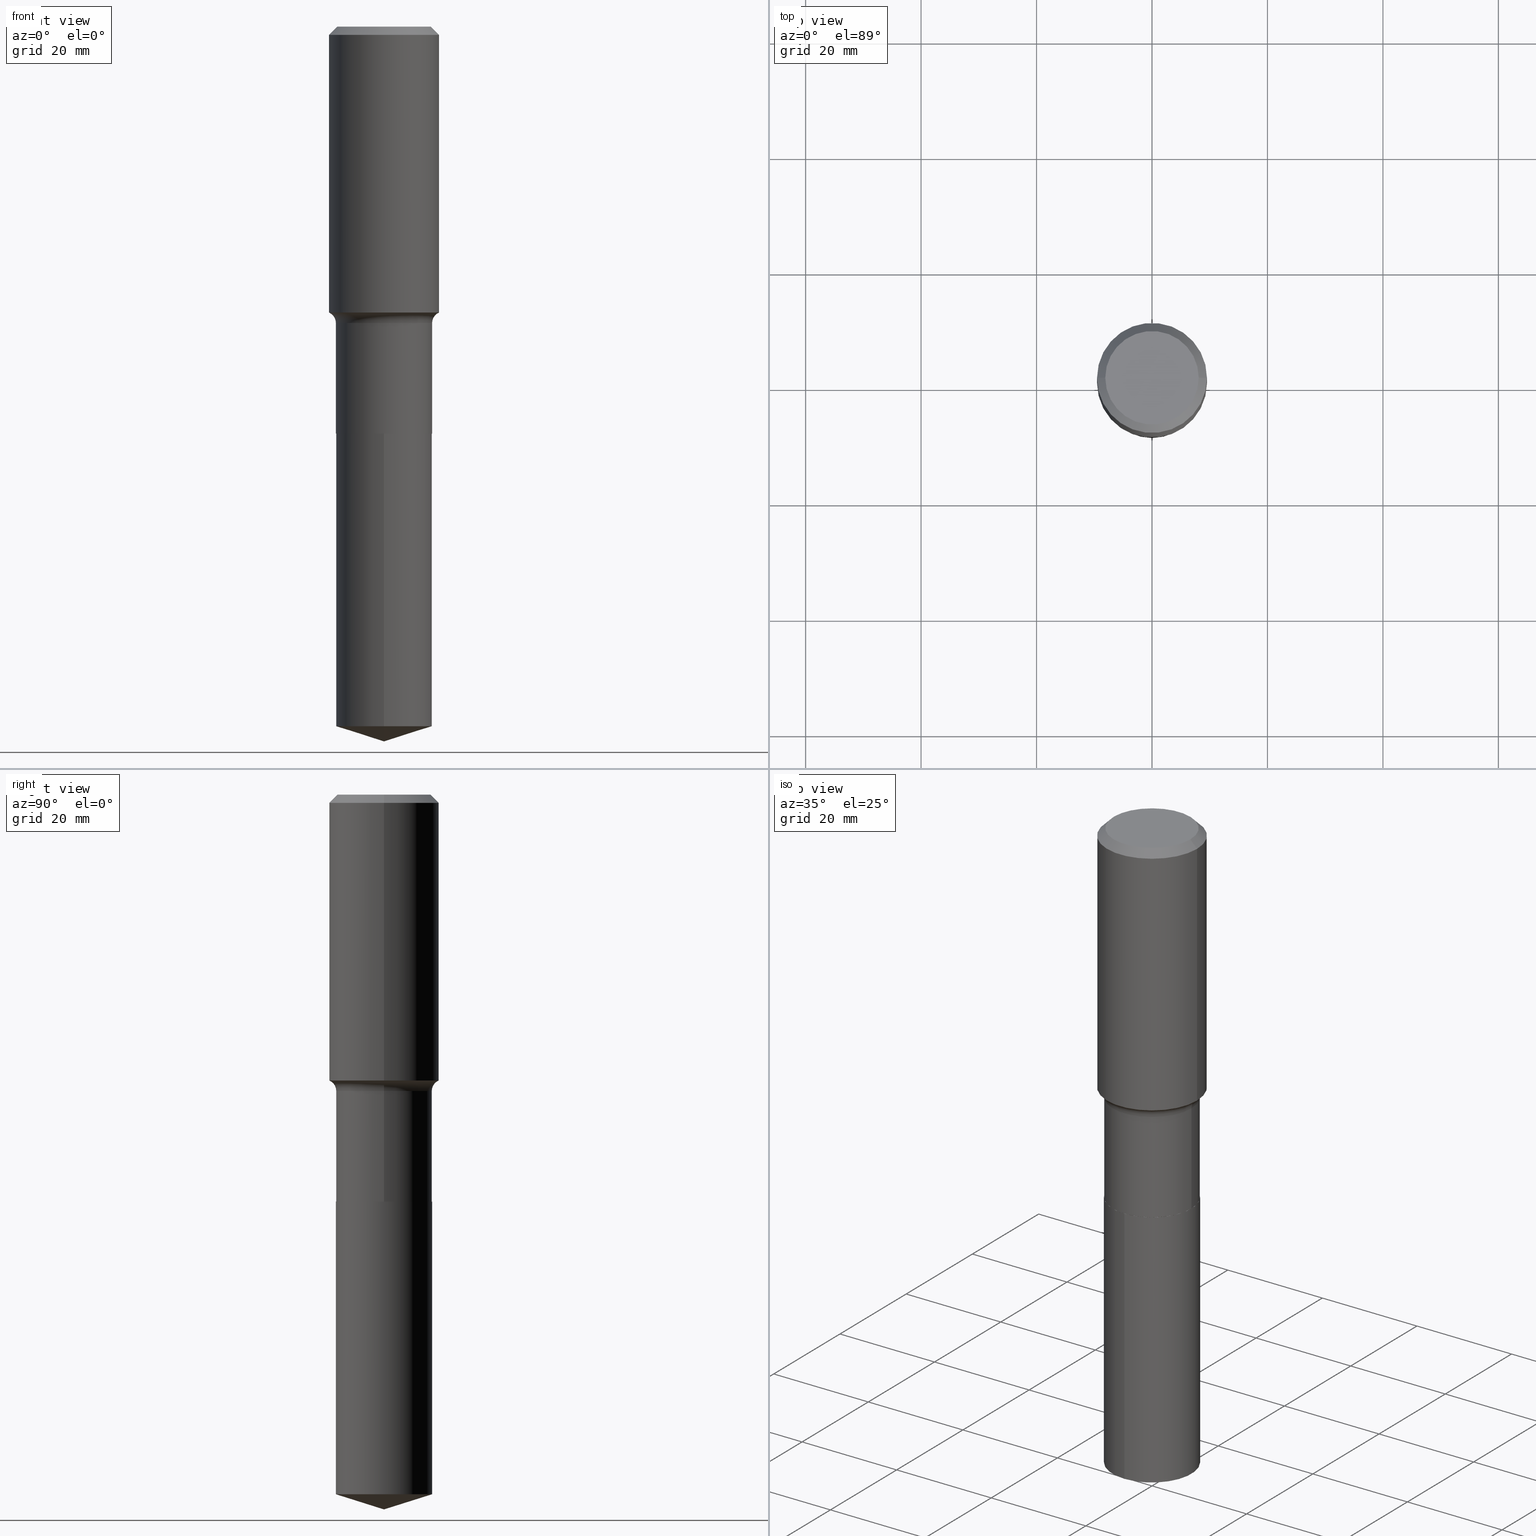
[diagram: canonical four-view strip — front | top / right | iso, engineering-drawing reading convention]
A machine part, canonical four-view strip (front | top / right | iso — engineering-drawing reading convention). The complete STEP part file that produces these views, byte-faithful:
ISO-10303-21;
HEADER;
FILE_DESCRIPTION (( 'STEP AP203' ),
    '1' );
FILE_NAME ('51369.STEP',
    '2024-04-19T12:53:29',
    ( '' ),
    ( '' ),
    'SwSTEP 2.0',
    'SolidWorks 2023',
    '' );
FILE_SCHEMA (( 'CONFIG_CONTROL_DESIGN' ));
ENDSEC;

DATA;
#1 = CALENDAR_DATE ( 2024, 19, 4 ) ;
#2 = DIRECTION ( 'NONE',  ( -6.982962677686266711E-15, -1.000000000000000000, 3.491481338843145583E-15 ) ) ;
#3 = CARTESIAN_POINT ( 'NONE',  ( -0.3280999999999998917, 2.331290716028887941E-15, -1.613902603112634153E-29 ) ) ;
#4 = AXIS2_PLACEMENT_3D ( 'NONE', #261, #329, #409 ) ;
#5 = ORIENTED_EDGE ( 'NONE', *, *, #203, .F. ) ;
#6 = CC_DESIGN_PERSON_AND_ORGANIZATION_ASSIGNMENT ( #95, #350, ( #218 ) ) ;
#7 = FACE_OUTER_BOUND ( 'NONE', #154, .T. ) ;
#8 = DIRECTION ( 'NONE',  ( -6.982962677686265133E-15, -1.000000000000000000, 3.330506545156066257E-15 ) ) ;
#9 = CARTESIAN_POINT ( 'NONE',  ( 0.3750000000000000555, -2.815006829442278240E-15, -0.05625000000000031364 ) ) ;
#10 = EDGE_CURVE ( 'NONE', #397, #120, #355, .T. ) ;
#11 = CALENDAR_DATE ( 2024, 19, 4 ) ;
#12 = MECHANICAL_CONTEXT ( 'NONE', #280, 'mechanical' ) ;
#13 = AXIS2_PLACEMENT_3D ( 'NONE', #94, #243, #209 ) ;
#14 = EDGE_CURVE ( 'NONE', #291, #321, #432, .T. ) ;
#15 = DIRECTION ( 'NONE',  ( 2.446539038429148282E-29, -3.489948705355884023E-15, -1.000000000000000000 ) ) ;
#16 = APPROVAL_DATE_TIME ( #353, #45 ) ;
#17 = EDGE_CURVE ( 'NONE', #291, #328, #426, .T. ) ;
#18 = AXIS2_PLACEMENT_3D ( 'NONE', #128, #276, #134 ) ;
#19 = DESIGN_CONTEXT ( 'detailed design', #265, 'design' ) ;
#20 = ORIENTED_EDGE ( 'NONE', *, *, #430, .T. ) ;
#21 = FACE_OUTER_BOUND ( 'NONE', #260, .T. ) ;
#22 = EDGE_LOOP ( 'NONE', ( #130, #20, #108, #420 ) ) ;
#23 = CARTESIAN_POINT ( 'NONE',  ( -2.291110054548795878E-15, -0.3281000000000096617, -2.776199999999998447 ) ) ;
#24 = VECTOR ( 'NONE', #461, 39.37007874015748854 ) ;
#25 = ORIENTED_EDGE ( 'NONE', *, *, #359, .F. ) ;
#26 = CARTESIAN_POINT ( 'NONE',  ( -0.3280999999999998917, -6.043550997387220874E-15, -2.775699999999999612 ) ) ;
#27 = AXIS2_PLACEMENT_3D ( 'NONE', #117, #322, #362 ) ;
#28 = EDGE_LOOP ( 'NONE', ( #61, #65, #458, #211 ) ) ;
#29 = DIRECTION ( 'NONE',  ( 2.445468806185136597E-29, -3.491481338843145583E-15, -1.000000000000000000 ) ) ;
#30 = EDGE_CURVE ( 'NONE', #377, #274, #240, .T. ) ;
#31 = CARTESIAN_POINT ( 'NONE',  ( 2.331290716029005086E-15, 0.3280999999999902883, -2.776200000000000667 ) ) ;
#32 = DATE_AND_TIME ( #367, #140 ) ;
#33 = VECTOR ( 'NONE', #166, 39.37007874015748143 ) ;
#34 = CARTESIAN_POINT ( 'NONE',  ( 4.943759738583870671E-29, -7.058378674605300908E-15, -2.021599999999999397 ) ) ;
#35 = ORIENTED_EDGE ( 'NONE', *, *, #376, .T. ) ;
#36 = CARTESIAN_POINT ( 'NONE',  ( 4.943759738583870671E-29, -7.058378674605300908E-15, -2.021599999999999397 ) ) ;
#37 = CARTESIAN_POINT ( 'NONE',  ( 1.375576203479146973E-30, -1.963958253099280262E-16, -0.05625000000000031364 ) ) ;
#38 = EDGE_LOOP ( 'NONE', ( #74, #302, #133 ) ) ;
#39 = AXIS2_PLACEMENT_3D ( 'NONE', #36, #239, #309 ) ;
#40 = DIRECTION ( 'NONE',  ( -6.982962677686265922E-15, -1.000000000000000000, 3.500519750498709954E-15 ) ) ;
#41 = ORIENTED_EDGE ( 'NONE', *, *, #347, .F. ) ;
#42 = CARTESIAN_POINT ( 'NONE',  ( -0.3750000000000002220, -4.144091675948292406E-15, -1.950068258793734799 ) ) ;
#43 = CIRCLE ( 'NONE', #438, 0.3276000000000000578 ) ;
#44 = DATE_AND_TIME ( #1, #316 ) ;
#45 = APPROVAL ( #138, 'UNSPECIFIED' ) ;
#46 = DIRECTION ( 'NONE',  ( 1.000000000000000000, -6.982962677686269077E-15, 0.000000000000000000 ) ) ;
#47 = EDGE_LOOP ( 'NONE', ( #173, #5 ) ) ;
#48 = LOCAL_TIME ( 8, 53, 29.00000000000000000, #98 ) ;
#49 = DIRECTION ( 'NONE',  ( -2.446539038429148563E-29, 3.489948705355884023E-15, 1.000000000000000000 ) ) ;
#50 = ORIENTED_EDGE ( 'NONE', *, *, #403, .F. ) ;
#51 = DATE_TIME_ROLE ( 'creation_date' ) ;
#52 = DIRECTION ( 'NONE',  ( -6.982962677686265133E-15, -1.000000000000000000, 3.330506545156066257E-15 ) ) ;
#53 = EDGE_CURVE ( 'NONE', #357, #120, #295, .T. ) ;
#54 = VECTOR ( 'NONE', #235, 39.37007874015748143 ) ;
#55 = EDGE_CURVE ( 'NONE', #291, #436, #122, .T. ) ;
#56 = DATE_AND_TIME ( #11, #210 ) ;
#57 = AXIS2_PLACEMENT_3D ( 'NONE', #448, #334, #489 ) ;
#58 = EDGE_CURVE ( 'NONE', #120, #397, #220, .T. ) ;
#59 = PERSON_AND_ORGANIZATION ( #137, #129 ) ;
#60 = ADVANCED_BREP_SHAPE_REPRESENTATION ( '51369', ( #216, #385, #198 ), #333 ) ;
#61 = ORIENTED_EDGE ( 'NONE', *, *, #394, .F. ) ;
#62 = CARTESIAN_POINT ( 'NONE',  ( 1.375576203479146973E-30, -1.963958253099280262E-16, -0.05625000000000031364 ) ) ;
#63 = CONICAL_SURFACE ( 'NONE', #345, 124.8659371009148629, 1.265363707695891238 ) ;
#64 = PERSON_AND_ORGANIZATION_ROLE ( 'design_supplier' ) ;
#65 = ORIENTED_EDGE ( 'NONE', *, *, #14, .F. ) ;
#66 = CYLINDRICAL_SURFACE ( 'NONE', #185, 0.3280999999999998917 ) ;
#67 = EDGE_CURVE ( 'NONE', #274, #204, #330, .T. ) ;
#68 = EDGE_CURVE ( 'NONE', #321, #135, #278, .T. ) ;
#69 = ORIENTED_EDGE ( 'NONE', *, *, #449, .F. ) ;
#70 = DIRECTION ( 'NONE',  ( -2.445468806185136597E-29, 3.491481338843145583E-15, 1.000000000000000000 ) ) ;
#71 = CIRCLE ( 'NONE', #229, 0.3750000000000000555 ) ;
#72 = ADVANCED_FACE ( 'NONE', ( #139 ), #96, .T. ) ;
#73 = PERSON_AND_ORGANIZATION ( #137, #129 ) ;
#74 = ORIENTED_EDGE ( 'NONE', *, *, #53, .F. ) ;
#75 = AXIS2_PLACEMENT_3D ( 'NONE', #337, #241, #491 ) ;
#76 = CARTESIAN_POINT ( 'NONE',  ( 6.789110499731175434E-29, -9.693050492896339802E-15, -2.776199999999999779 ) ) ;
#77 = ADVANCED_FACE ( 'NONE', ( #372 ), #292, .T. ) ;
#78 = VERTEX_POINT ( 'NONE', #31 ) ;
#79 = DIRECTION ( 'NONE',  ( 1.000000000000000000, -6.982962677686269077E-15, 0.000000000000000000 ) ) ;
#80 = ORIENTED_EDGE ( 'NONE', *, *, #379, .T. ) ;
#81 = DIRECTION ( 'NONE',  ( 1.000000000000000000, -6.982962677686269077E-15, 0.000000000000000000 ) ) ;
#82 = ORIENTED_EDGE ( 'NONE', *, *, #58, .T. ) ;
#83 = AXIS2_PLACEMENT_3D ( 'NONE', #228, #155, #195 ) ;
#84 = CARTESIAN_POINT ( 'NONE',  ( 0.3187499999999999778, -2.477933155631963807E-15, 6.505936120486766208E-18 ) ) ;
#85 = CARTESIAN_POINT ( 'NONE',  ( 1.167081331349680741E-28, -1.665672127322136437E-14, -4.771550467368806281 ) ) ;
#86 = LINE ( 'NONE', #89, #190 ) ;
#87 = APPROVAL ( #101, 'UNSPECIFIED' ) ;
#88 = CARTESIAN_POINT ( 'NONE',  ( 0.4060999999999999610, -9.894159818013693857E-15, -2.021599999999999397 ) ) ;
#89 = CARTESIAN_POINT ( 'NONE',  ( -2.291110054548795878E-15, -0.3281000000000096617, -2.776199999999998447 ) ) ;
#90 = CLOSED_SHELL ( 'NONE', ( #77, #324, #315, #72, #414 ) ) ;
#91 =( NAMED_UNIT ( * ) SI_UNIT ( $, .STERADIAN. ) SOLID_ANGLE_UNIT ( ) );
#92 = ORIENTED_EDGE ( 'NONE', *, *, #444, .T. ) ;
#93 = AXIS2_PLACEMENT_3D ( 'NONE', #34, #200, #46 ) ;
#94 = CARTESIAN_POINT ( 'NONE',  ( -8.439652795023848374E-28, 1.203818004932745393E-13, 34.49507874015748143 ) ) ;
#95 = PERSON_AND_ORGANIZATION ( #137, #129 ) ;
#96 = CYLINDRICAL_SURFACE ( 'NONE', #151, 0.3281000000000000028 ) ;
#97 = EDGE_CURVE ( 'NONE', #328, #450, #127, .T. ) ;
#98 = COORDINATED_UNIVERSAL_TIME_OFFSET ( 5, 0, .BEHIND. ) ;
#99 = FACE_OUTER_BOUND ( 'NONE', #258, .T. ) ;
#100 = VECTOR ( 'NONE', #447, 39.37007874015748143 ) ;
#101 = APPROVAL_STATUS ( 'not_yet_approved' ) ;
#102 = PLANE ( 'NONE',  #435 ) ;
#103 = CC_DESIGN_APPROVAL ( #193, ( #364 ) ) ;
#104 = DIRECTION ( 'NONE',  ( 0.000000000000000000, 0.000000000000000000, 1.000000000000000000 ) ) ;
#105 = LINE ( 'NONE', #314, #24 ) ;
#106 = ADVANCED_FACE ( 'NONE', ( #21 ), #402, .T. ) ;
#107 = PERSON_AND_ORGANIZATION_ROLE ( 'classification_officer' ) ;
#108 = ORIENTED_EDGE ( 'NONE', *, *, #262, .T. ) ;
#109 = CARTESIAN_POINT ( 'NONE',  ( 2.331290716028956177E-15, 0.3280999999999902883, -2.776200000000000667 ) ) ;
#110 = CC_DESIGN_SECURITY_CLASSIFICATION ( #364, ( #304 ) ) ;
#111 = APPROVAL_DATE_TIME ( #221, #87 ) ;
#112 = EDGE_LOOP ( 'NONE', ( #255, #441, #439, #25 ) ) ;
#113 = DIRECTION ( 'NONE',  ( -1.000000000000000000, 6.982962677686265922E-15, 0.000000000000000000 ) ) ;
#114 = ORIENTED_EDGE ( 'NONE', *, *, #262, .F. ) ;
#115 = DIRECTION ( 'NONE',  ( 1.000000000000000000, -6.982962677686265922E-15, 4.876176775795935793E-29 ) ) ;
#116 = ORIENTED_EDGE ( 'NONE', *, *, #467, .F. ) ;
#117 = CARTESIAN_POINT ( 'NONE',  ( 1.002231447305292995E-28, -5.062918380557678250E-15, -2.776199999999999779 ) ) ;
#118 = CIRCLE ( 'NONE', #422, 0.3276000000000000578 ) ;
#119 = DIMENSIONAL_EXPONENTS ( 1.000000000000000000, 0.000000000000000000, 0.000000000000000000, 0.000000000000000000, 0.000000000000000000, 0.000000000000000000, 0.000000000000000000 ) ;
#120 = VERTEX_POINT ( 'NONE', #434 ) ;
#121 = DIRECTION ( 'NONE',  ( 1.000000000000000000, -6.982962677686267499E-15, 4.876176775795935793E-29 ) ) ;
#122 = LINE ( 'NONE', #263, #54 ) ;
#123 = FACE_OUTER_BOUND ( 'NONE', #162, .T. ) ;
#124 = CIRCLE ( 'NONE', #464, 0.3281000000000000028 ) ;
#125 = DIRECTION ( 'NONE',  ( 1.000000000000000000, -6.982962677686265922E-15, 0.000000000000000000 ) ) ;
#126 = DIRECTION ( 'NONE',  ( -2.445468806185136597E-29, 3.491481338843145583E-15, 1.000000000000000000 ) ) ;
#127 = CIRCLE ( 'NONE', #187, 0.3280999999999998917 ) ;
#128 = CARTESIAN_POINT ( 'NONE',  ( -1.591006383764331135E-46, 2.271535455632769222E-32, 6.505936120470319537E-18 ) ) ;
#129 = ORGANIZATION ( 'UNSPECIFIED', 'UNSPECIFIED', '' ) ;
#130 = ORIENTED_EDGE ( 'NONE', *, *, #308, .F. ) ;
#131 = CC_DESIGN_DATE_AND_TIME_ASSIGNMENT ( #56, #51, ( #218 ) ) ;
#132 = CARTESIAN_POINT ( 'NONE',  ( 6.789110499731175434E-29, -9.693050492896339802E-15, -2.776199999999999779 ) ) ;
#133 = ORIENTED_EDGE ( 'NONE', *, *, #58, .F. ) ;
#134 = DIRECTION ( 'NONE',  ( 1.000000000000000000, -6.982962677686267499E-15, 4.876227444496879000E-29 ) ) ;
#135 = VERTEX_POINT ( 'NONE', #481 ) ;
#136 = DIRECTION ( 'NONE',  ( -2.446539038429148563E-29, 3.489948705355884023E-15, 1.000000000000000000 ) ) ;
#137 = PERSON ( 'UNSPECIFIED', 'UNSPECIFIED', 'UNSPECIFIED', ('UNSPECIFIED'), ('UNSPECIFIED'), ('UNSPECIFIED') ) ;
#138 = APPROVAL_STATUS ( 'not_yet_approved' ) ;
#139 = FACE_OUTER_BOUND ( 'NONE', #112, .T. ) ;
#140 = LOCAL_TIME ( 8, 53, 29.00000000000000000, #249 ) ;
#141 = CARTESIAN_POINT ( 'NONE',  ( -0.3280999999999998917, -6.043550997387220874E-15, -2.021599999999999397 ) ) ;
#142 = TOROIDAL_SURFACE ( 'NONE', #180, 0.4060999999999999610, 0.07800000000000006928 ) ;
#143 = AXIS2_PLACEMENT_3D ( 'NONE', #85, #338, #418 ) ;
#144 = ADVANCED_FACE ( 'NONE', ( #256 ), #177, .T. ) ;
#145 = CALENDAR_DATE ( 2024, 19, 4 ) ;
#146 = CARTESIAN_POINT ( 'NONE',  ( 0.3750000000000000555, -2.769082574474252559E-15, -0.05625000000000031364 ) ) ;
#147 = CC_DESIGN_PERSON_AND_ORGANIZATION_ASSIGNMENT ( #59, #427, ( #471 ) ) ;
#148 = CIRCLE ( 'NONE', #366, 0.3187499999999999778 ) ;
#149 = ORIENTED_EDGE ( 'NONE', *, *, #466, .T. ) ;
#150 = DIRECTION ( 'NONE',  ( -2.445468806185136597E-29, 3.491481338843145583E-15, 1.000000000000000000 ) ) ;
#151 = AXIS2_PLACEMENT_3D ( 'NONE', #424, #388, #52 ) ;
#152 = EDGE_CURVE ( 'NONE', #397, #78, #474, .T. ) ;
#153 = VECTOR ( 'NONE', #398, 39.37007874015748143 ) ;
#154 = EDGE_LOOP ( 'NONE', ( #160, #331, #149, #231 ) ) ;
#155 = DIRECTION ( 'NONE',  ( -2.445468806185136597E-29, 3.491481338843145583E-15, 1.000000000000000000 ) ) ;
#156 = ORIENTED_EDGE ( 'NONE', *, *, #457, .F. ) ;
#157 = CARTESIAN_POINT ( 'NONE',  ( -0.3187499999999999778, 2.324017266167459654E-15, 6.505936120454410585E-18 ) ) ;
#158 = ORIENTED_EDGE ( 'NONE', *, *, #67, .T. ) ;
#159 = CARTESIAN_POINT ( 'NONE',  ( -0.3750000000000000555, 2.422215178822422188E-15, -0.05625000000000031364 ) ) ;
#160 = ORIENTED_EDGE ( 'NONE', *, *, #376, .F. ) ;
#161 = FACE_OUTER_BOUND ( 'NONE', #361, .T. ) ;
#162 = EDGE_LOOP ( 'NONE', ( #475, #253 ) ) ;
#163 = DIRECTION ( 'NONE',  ( -2.445468806185136597E-29, 3.491481338843145583E-15, 1.000000000000000000 ) ) ;
#164 = EDGE_LOOP ( 'NONE', ( #386, #455, #114, #271 ) ) ;
#165 = CARTESIAN_POINT ( 'NONE',  ( 6.787887765328082633E-29, -9.691304752226917509E-15, -2.775699999999999612 ) ) ;
#166 = DIRECTION ( 'NONE',  ( -2.445468806185136877E-29, 3.491481338843145188E-15, 1.000000000000000000 ) ) ;
#167 = VERTEX_POINT ( 'NONE', #157 ) ;
#168 = VECTOR ( 'NONE', #382, 39.37007874015748854 ) ;
#169 = CARTESIAN_POINT ( 'NONE',  ( 0.3750000000000002220, -9.427237939181022852E-15, -1.950068258793734799 ) ) ;
#170 = CIRCLE ( 'NONE', #93, 0.3280999999999998917 ) ;
#171 = DIRECTION ( 'NONE',  ( 1.000000000000000000, -6.982962677686274599E-15, 0.000000000000000000 ) ) ;
#172 = CARTESIAN_POINT ( 'NONE',  ( 6.789110499731174313E-29, -9.693050492896336646E-15, -2.776199999999999335 ) ) ;
#173 = ORIENTED_EDGE ( 'NONE', *, *, #379, .F. ) ;
#174 = FACE_OUTER_BOUND ( 'NONE', #38, .T. ) ;
#175 = CARTESIAN_POINT ( 'NONE',  ( 6.787887765328082633E-29, -9.691304752226917509E-15, -2.775699999999999612 ) ) ;
#176 = CARTESIAN_POINT ( 'NONE',  ( 6.789110499731175434E-29, -9.693050492896339802E-15, -2.776199999999999779 ) ) ;
#177 = CONICAL_SURFACE ( 'NONE', #389, 0.3276000000000000578, 0.7853981633976532262 ) ;
#178 = LINE ( 'NONE', #146, #469 ) ;
#179 = PERSON_AND_ORGANIZATION ( #137, #129 ) ;
#180 = AXIS2_PLACEMENT_3D ( 'NONE', #303, #459, #270 ) ;
#181 = CONICAL_SURFACE ( 'NONE', #13, 124.8659371009148629, 1.265363707695891238 ) ;
#182 = DIRECTION ( 'NONE',  ( 6.982962677686265922E-15, 1.000000000000000000, -3.489948705355884023E-15 ) ) ;
#183 = ADVANCED_FACE ( 'NONE', ( #161 ), #275, .T. ) ;
#184 = COORDINATED_UNIVERSAL_TIME_OFFSET ( 5, 0, .BEHIND. ) ;
#185 = AXIS2_PLACEMENT_3D ( 'NONE', #442, #70, #225 ) ;
#186 = CARTESIAN_POINT ( 'NONE',  ( 0.000000000000000000, 0.000000000000000000, 0.000000000000000000 ) ) ;
#187 = AXIS2_PLACEMENT_3D ( 'NONE', #290, #150, #79 ) ;
#188 = FACE_OUTER_BOUND ( 'NONE', #22, .T. ) ;
#189 = APPROVAL_PERSON_ORGANIZATION ( #179, #45, #423 ) ;
#190 = VECTOR ( 'NONE', #49, 39.37007874015748143 ) ;
#191 = ORIENTED_EDGE ( 'NONE', *, *, #30, .F. ) ;
#192 = DIRECTION ( 'NONE',  ( 1.000000000000000000, -6.982962677686269866E-15, 0.000000000000000000 ) ) ;
#193 = APPROVAL ( #199, 'UNSPECIFIED' ) ;
#194 = ORIENTED_EDGE ( 'NONE', *, *, #203, .T. ) ;
#195 = DIRECTION ( 'NONE',  ( 1.000000000000000000, -6.982962677686265922E-15, 0.000000000000000000 ) ) ;
#196 = ORIENTED_EDGE ( 'NONE', *, *, #53, .T. ) ;
#197 = CARTESIAN_POINT ( 'NONE',  ( -0.3276000000000000578, -7.365312490546247632E-15, -2.776199999999999335 ) ) ;
#198 = AXIS2_PLACEMENT_3D ( 'NONE', #214, #104, #425 ) ;
#199 = APPROVAL_STATUS ( 'not_yet_approved' ) ;
#200 = DIRECTION ( 'NONE',  ( -2.445468806185136597E-29, 3.491481338843145583E-15, 1.000000000000000000 ) ) ;
#201 = CARTESIAN_POINT ( 'NONE',  ( 1.167081331349680741E-28, -1.665672127322136437E-14, -4.771550467368806281 ) ) ;
#202 = DIRECTION ( 'NONE',  ( 1.000000000000000000, -6.982962677686269866E-15, 0.000000000000000000 ) ) ;
#203 = EDGE_CURVE ( 'NONE', #310, #377, #43, .T. ) ;
#204 = VERTEX_POINT ( 'NONE', #26 ) ;
#205 = FACE_OUTER_BOUND ( 'NONE', #336, .T. ) ;
#206 = EDGE_CURVE ( 'NONE', #167, #135, #327, .T. ) ;
#207 = AXIS2_PLACEMENT_3D ( 'NONE', #283, #440, #115 ) ;
#208 = DIRECTION ( 'NONE',  ( 1.000000000000000000, -6.982962677686269077E-15, 0.000000000000000000 ) ) ;
#209 = DIRECTION ( 'NONE',  ( -6.982962677686265922E-15, -1.000000000000000000, 3.500519750498709954E-15 ) ) ;
#210 = LOCAL_TIME ( 8, 53, 29.00000000000000000, #184 ) ;
#211 = ORIENTED_EDGE ( 'NONE', *, *, #97, .T. ) ;
#212 = CARTESIAN_POINT ( 'NONE',  ( -1.591006383764331135E-46, 2.271535455632769222E-32, 6.505936120470319537E-18 ) ) ;
#213 = CARTESIAN_POINT ( 'NONE',  ( 4.768831096811842640E-29, -6.808626935048671258E-15, -1.950068258793734799 ) ) ;
#214 = CARTESIAN_POINT ( 'NONE',  ( 0.000000000000000000, 0.000000000000000000, 0.000000000000000000 ) ) ;
#215 = ADVANCED_FACE ( 'NONE', ( #358 ), #66, .T. ) ;
#216 = MANIFOLD_SOLID_BREP ( 'Body-Move/Copy2[1]', #90 ) ;
#217 = CIRCLE ( 'NONE', #391, 0.3750000000000002220 ) ;
#218 = PRODUCT_DEFINITION ( 'UNKNOWN', '', #304, #19 ) ;
#219 = APPROVAL_ROLE ( '' ) ;
#220 = CIRCLE ( 'NONE', #492, 0.3281000000000000028 ) ;
#221 = DATE_AND_TIME ( #145, #477 ) ;
#222 = ORIENTED_EDGE ( 'NONE', *, *, #344, .F. ) ;
#223 = CARTESIAN_POINT ( 'NONE',  ( 6.789110499731174313E-29, -9.693050492896336646E-15, -2.776199999999999335 ) ) ;
#224 = ORIENTED_EDGE ( 'NONE', *, *, #444, .F. ) ;
#225 = DIRECTION ( 'NONE',  ( 1.000000000000000000, -6.982962677686267499E-15, 4.876176775795935793E-29 ) ) ;
#226 = VECTOR ( 'NONE', #346, 39.37007874015748143 ) ;
#227 = AXIS2_PLACEMENT_3D ( 'NONE', #62, #437, #113 ) ;
#228 = CARTESIAN_POINT ( 'NONE',  ( 1.375576203479146973E-30, -1.963958253099280262E-16, -0.05625000000000031364 ) ) ;
#229 = AXIS2_PLACEMENT_3D ( 'NONE', #37, #234, #125 ) ;
#230 = ADVANCED_FACE ( 'NONE', ( #446 ), #287, .T. ) ;
#231 = ORIENTED_EDGE ( 'NONE', *, *, #17, .F. ) ;
#232 = FACE_OUTER_BOUND ( 'NONE', #164, .T. ) ;
#233 = PLANE ( 'NONE',  #27 ) ;
#234 = DIRECTION ( 'NONE',  ( -2.445468806185136597E-29, 3.491481338843145583E-15, 1.000000000000000000 ) ) ;
#235 = DIRECTION ( 'NONE',  ( -2.445468806185136877E-29, 3.491481338843145188E-15, 1.000000000000000000 ) ) ;
#236 = DIRECTION ( 'NONE',  ( -2.445468806185136597E-29, 3.491481338843145583E-15, 1.000000000000000000 ) ) ;
#237 = ORIENTED_EDGE ( 'NONE', *, *, #457, .T. ) ;
#238 = DIRECTION ( 'NONE',  ( -2.446539038429148563E-29, 3.489948705355884023E-15, 1.000000000000000000 ) ) ;
#239 = DIRECTION ( 'NONE',  ( -2.445468806185136597E-29, 3.491481338843145583E-15, 1.000000000000000000 ) ) ;
#240 = LINE ( 'NONE', #485, #168 ) ;
#241 = DIRECTION ( 'NONE',  ( 2.438088387897960049E-29, -3.491481338843145188E-15, -1.000000000000000000 ) ) ;
#242 = ORIENTED_EDGE ( 'NONE', *, *, #55, .T. ) ;
#243 = DIRECTION ( 'NONE',  ( -2.446539038429148563E-29, 3.489948705355884023E-15, 1.000000000000000000 ) ) ;
#244 = PERSON_AND_ORGANIZATION ( #137, #129 ) ;
#245 = DIRECTION ( 'NONE',  ( -2.445468806185136597E-29, 3.491481338843145583E-15, 1.000000000000000000 ) ) ;
#246 = CALENDAR_DATE ( 2024, 19, 4 ) ;
#247 = CLOSED_SHELL ( 'NONE', ( #144, #257, #279, #323, #215, #230, #369, #106, #183, #293, #248, #348 ) ) ;
#248 = ADVANCED_FACE ( 'NONE', ( #254 ), #233, .F. ) ;
#249 = COORDINATED_UNIVERSAL_TIME_OFFSET ( 5, 0, .BEHIND. ) ;
#250 = VERTEX_POINT ( 'NONE', #23 ) ;
#251 = APPROVAL_PERSON_ORGANIZATION ( #412, #193, #406 ) ;
#252 = DIRECTION ( 'NONE',  ( 1.000000000000000000, -6.982962677686269866E-15, 0.000000000000000000 ) ) ;
#253 = ORIENTED_EDGE ( 'NONE', *, *, #308, .T. ) ;
#254 = FACE_OUTER_BOUND ( 'NONE', #47, .T. ) ;
#255 = ORIENTED_EDGE ( 'NONE', *, *, #152, .F. ) ;
#256 = FACE_OUTER_BOUND ( 'NONE', #478, .T. ) ;
#257 = ADVANCED_FACE ( 'NONE', ( #188 ), #352, .T. ) ;
#258 = EDGE_LOOP ( 'NONE', ( #92, #400 ) ) ;
#259 = DIRECTION ( 'NONE',  ( -2.446539038429148563E-29, 3.489948705355884023E-15, 1.000000000000000000 ) ) ;
#260 = EDGE_LOOP ( 'NONE', ( #380, #35, #242, #156 ) ) ;
#261 = CARTESIAN_POINT ( 'NONE',  ( 0.000000000000000000, 0.000000000000000000, 0.000000000000000000 ) ) ;
#262 = EDGE_CURVE ( 'NONE', #436, #135, #288, .T. ) ;
#263 = CARTESIAN_POINT ( 'NONE',  ( 0.3750000000000001110, -2.618611004132350411E-15, 1.828566290923476483E-29 ) ) ;
#264 = LINE ( 'NONE', #3, #482 ) ;
#265 = APPLICATION_CONTEXT ( 'configuration controlled 3d designs of mechanical parts and assemblies' ) ;
#266 =( CONVERSION_BASED_UNIT ( 'INCH', #301 ) LENGTH_UNIT ( ) NAMED_UNIT ( #119 ) );
#267 = ORIENTED_EDGE ( 'NONE', *, *, #30, .T. ) ;
#268 = DIRECTION ( 'NONE',  ( -0.7071067811866923458, 7.493145998870876386E-15, 0.7071067811864025776 ) ) ;
#269 = ORIENTED_EDGE ( 'NONE', *, *, #152, .T. ) ;
#270 = DIRECTION ( 'NONE',  ( 1.000000000000000000, -6.982962677686267499E-15, 4.883557194083112901E-29 ) ) ;
#271 = ORIENTED_EDGE ( 'NONE', *, *, #55, .F. ) ;
#272 = CARTESIAN_POINT ( 'NONE',  ( 4.768831096811842640E-29, -6.808626935048671258E-15, -1.950068258793734799 ) ) ;
#273 = CC_DESIGN_DATE_AND_TIME_ASSIGNMENT ( #32, #300, ( #364 ) ) ;
#274 = VERTEX_POINT ( 'NONE', #405 ) ;
#275 = CONICAL_SURFACE ( 'NONE', #227, 0.3750000000000000555, 0.7853981633974458365 ) ;
#276 = DIRECTION ( 'NONE',  ( -2.445468806185136597E-29, 3.491481338843145583E-15, 1.000000000000000000 ) ) ;
#277 = CIRCLE ( 'NONE', #18, 0.3187499999999999778 ) ;
#278 = LINE ( 'NONE', #460, #226 ) ;
#279 = ADVANCED_FACE ( 'NONE', ( #232 ), #370, .T. ) ;
#280 = APPLICATION_CONTEXT ( 'configuration controlled 3d designs of mechanical parts and assemblies' ) ;
#281 = DIRECTION ( 'NONE',  ( -2.446539038429148563E-29, 3.489948705355884023E-15, 1.000000000000000000 ) ) ;
#282 = ORIENTED_EDGE ( 'NONE', *, *, #467, .T. ) ;
#283 = CARTESIAN_POINT ( 'NONE',  ( 0.000000000000000000, 0.000000000000000000, 0.000000000000000000 ) ) ;
#284 = AXIS2_PLACEMENT_3D ( 'NONE', #175, #245, #313 ) ;
#285 = AXIS2_PLACEMENT_3D ( 'NONE', #172, #236, #296 ) ;
#286 = ORIENTED_EDGE ( 'NONE', *, *, #430, .F. ) ;
#287 = CYLINDRICAL_SURFACE ( 'NONE', #429, 0.3280999999999998917 ) ;
#288 = CIRCLE ( 'NONE', #83, 0.3750000000000000555 ) ;
#289 = EDGE_LOOP ( 'NONE', ( #69, #196, #452 ) ) ;
#290 = CARTESIAN_POINT ( 'NONE',  ( 4.943759738583870671E-29, -7.058378674605300908E-15, -2.021599999999999397 ) ) ;
#291 = VERTEX_POINT ( 'NONE', #169 ) ;
#292 = CYLINDRICAL_SURFACE ( 'NONE', #349, 0.3281000000000000028 ) ;
#293 = ADVANCED_FACE ( 'NONE', ( #123 ), #343, .F. ) ;
#294 = DIRECTION ( 'NONE',  ( -2.445468806185136597E-29, 3.491481338843145583E-15, 1.000000000000000000 ) ) ;
#295 = LINE ( 'NONE', #411, #100 ) ;
#296 = DIRECTION ( 'NONE',  ( 1.000000000000000000, -6.982962677686269866E-15, 0.000000000000000000 ) ) ;
#297 = VECTOR ( 'NONE', #268, 39.37007874015748854 ) ;
#298 = ORIENTED_EDGE ( 'NONE', *, *, #407, .F. ) ;
#299 = DIRECTION ( 'NONE',  ( -2.445468806185136597E-29, 3.491481338843145583E-15, 1.000000000000000000 ) ) ;
#300 = DATE_TIME_ROLE ( 'classification_date' ) ;
#301 = LENGTH_MEASURE_WITH_UNIT ( LENGTH_MEASURE( 0.02539999999999999897 ), #408 );
#302 = ORIENTED_EDGE ( 'NONE', *, *, #449, .T. ) ;
#303 = CARTESIAN_POINT ( 'NONE',  ( 4.943759738583870671E-29, -7.058378674605300908E-15, -2.021599999999999397 ) ) ;
#304 = PRODUCT_DEFINITION_FORMATION_WITH_SPECIFIED_SOURCE ( 'ANY', '', #471, .NOT_KNOWN. ) ;
#305 =( NAMED_UNIT ( * ) PLANE_ANGLE_UNIT ( ) SI_UNIT ( $, .RADIAN. ) );
#306 = EDGE_LOOP ( 'NONE', ( #158, #371, #433, #116 ) ) ;
#307 = AXIS2_PLACEMENT_3D ( 'NONE', #476, #29, #479 ) ;
#308 = EDGE_CURVE ( 'NONE', #490, #167, #148, .T. ) ;
#309 = DIRECTION ( 'NONE',  ( 1.000000000000000000, -6.982962677686267499E-15, 4.883557194083112901E-29 ) ) ;
#310 = VERTEX_POINT ( 'NONE', #421 ) ;
#311 = DIRECTION ( 'NONE',  ( -2.445468806185136877E-29, 3.491481338843145188E-15, 1.000000000000000000 ) ) ;
#312 = PRODUCT_DEFINITION_SHAPE ( 'NONE', 'NONE',  #218 ) ;
#313 = DIRECTION ( 'NONE',  ( 1.000000000000000000, -6.982962677686266711E-15, 0.000000000000000000 ) ) ;
#314 = CARTESIAN_POINT ( 'NONE',  ( 1.192692991980308599E-28, -1.701349993860993486E-14, -4.875000000000000000 ) ) ;
#315 = ADVANCED_FACE ( 'NONE', ( #374 ), #63, .T. ) ;
#316 = LOCAL_TIME ( 8, 53, 29.00000000000000000, #410 ) ;
#317 = APPROVAL_PERSON_ORGANIZATION ( #244, #87, #219 ) ;
#318 = CARTESIAN_POINT ( 'NONE',  ( 6.789110499731175434E-29, -9.693050492896339802E-15, -2.776199999999999779 ) ) ;
#319 = VECTOR ( 'NONE', #396, 39.37007874015748143 ) ;
#320 = DIRECTION ( 'NONE',  ( -6.982962677686265133E-15, -1.000000000000000000, 3.330506545156066257E-15 ) ) ;
#321 = VERTEX_POINT ( 'NONE', #42 ) ;
#322 = DIRECTION ( 'NONE',  ( -2.438088387897960049E-29, 3.491481338843145188E-15, 1.000000000000000000 ) ) ;
#323 = ADVANCED_FACE ( 'NONE', ( #7 ), #142, .F. ) ;
#324 = ADVANCED_FACE ( 'NONE', ( #174 ), #181, .T. ) ;
#325 = AXIS2_PLACEMENT_3D ( 'NONE', #165, #299, #383 ) ;
#326 = DIRECTION ( 'NONE',  ( -2.445468806185136597E-29, 3.491481338843145583E-15, 1.000000000000000000 ) ) ;
#327 = LINE ( 'NONE', #159, #319 ) ;
#328 = VERTEX_POINT ( 'NONE', #340 ) ;
#329 = DIRECTION ( 'NONE',  ( -2.445468806185136597E-29, 3.491481338843145583E-15, 1.000000000000000000 ) ) ;
#330 = CIRCLE ( 'NONE', #284, 0.3280999999999998917 ) ;
#331 = ORIENTED_EDGE ( 'NONE', *, *, #394, .T. ) ;
#332 = CARTESIAN_POINT ( 'NONE',  ( 0.3276000000000000578, -1.198066906610636012E-14, -2.776199999999999335 ) ) ;
#333 =( GEOMETRIC_REPRESENTATION_CONTEXT ( 3 ) GLOBAL_UNCERTAINTY_ASSIGNED_CONTEXT ( ( #339 ) ) GLOBAL_UNIT_ASSIGNED_CONTEXT ( ( #266, #305, #91 ) ) REPRESENTATION_CONTEXT ( 'NONE', 'WORKASPACE' ) );
#334 = DIRECTION ( 'NONE',  ( 7.105427357601001859E-15, 1.000000000000000000, -3.491481338843145583E-15 ) ) ;
#335 = CARTESIAN_POINT ( 'NONE',  ( 0.3280999999999998917, -2.291110054548863720E-15, 1.599873600138646028E-29 ) ) ;
#336 = EDGE_LOOP ( 'NONE', ( #222, #194, #267, #298 ) ) ;
#337 = CARTESIAN_POINT ( 'NONE',  ( -7.955031918821655674E-47, 1.135767727816384611E-32, 3.252968060235159768E-18 ) ) ;
#338 = DIRECTION ( 'NONE',  ( -2.446539038429148563E-29, 3.489948705355884023E-15, 1.000000000000000000 ) ) ;
#339 = UNCERTAINTY_MEASURE_WITH_UNIT (LENGTH_MEASURE( 1.000000000000000082E-05 ), #266, 'distance_accuracy_value', 'NONE');
#340 = CARTESIAN_POINT ( 'NONE',  ( 0.3280999999999998917, -9.349488729154165811E-15, -2.021599999999999397 ) ) ;
#341 = LINE ( 'NONE', #335, #33 ) ;
#342 = ORIENTED_EDGE ( 'NONE', *, *, #206, .T. ) ;
#343 = PLANE ( 'NONE',  #75 ) ;
#344 = EDGE_CURVE ( 'NONE', #310, #204, #387, .T. ) ;
#345 = AXIS2_PLACEMENT_3D ( 'NONE', #486, #238, #40 ) ;
#346 = DIRECTION ( 'NONE',  ( -2.445468806185136877E-29, 3.491481338843145188E-15, 1.000000000000000000 ) ) ;
#347 = EDGE_CURVE ( 'NONE', #204, #450, #264, .T. ) ;
#348 = ADVANCED_FACE ( 'NONE', ( #205 ), #399, .T. ) ;
#349 = AXIS2_PLACEMENT_3D ( 'NONE', #76, #259, #320 ) ;
#350 = PERSON_AND_ORGANIZATION_ROLE ( 'creator' ) ;
#351 = CIRCLE ( 'NONE', #445, 0.3281000000000000028 ) ;
#352 = CONICAL_SURFACE ( 'NONE', #307, 0.3750000000000000555, 0.7853981633974458365 ) ;
#353 = DATE_AND_TIME ( #246, #48 ) ;
#354 = CC_DESIGN_PERSON_AND_ORGANIZATION_ASSIGNMENT ( #431, #107, ( #364 ) ) ;
#355 = CIRCLE ( 'NONE', #143, 0.3281000000000000028 ) ;
#356 = PERSON_AND_ORGANIZATION ( #137, #129 ) ;
#357 = VERTEX_POINT ( 'NONE', #453 ) ;
#358 = FACE_OUTER_BOUND ( 'NONE', #306, .T. ) ;
#359 = EDGE_CURVE ( 'NONE', #78, #250, #124, .T. ) ;
#360 = SECURITY_CLASSIFICATION_LEVEL ( 'unclassified' ) ;
#361 = EDGE_LOOP ( 'NONE', ( #286, #395, #342, #237 ) ) ;
#362 = DIRECTION ( 'NONE',  ( 1.000000000000000000, -6.982962677686265922E-15, 4.876176775795935793E-29 ) ) ;
#363 = AXIS2_PLACEMENT_3D ( 'NONE', #88, #2, #171 ) ;
#364 = SECURITY_CLASSIFICATION ( '', '', #360 ) ;
#365 = DIRECTION ( 'NONE',  ( -2.445468806185136597E-29, 3.491481338843145583E-15, 1.000000000000000000 ) ) ;
#366 = AXIS2_PLACEMENT_3D ( 'NONE', #212, #415, #378 ) ;
#367 = CALENDAR_DATE ( 2024, 19, 4 ) ;
#368 = EDGE_LOOP ( 'NONE', ( #41, #416, #282, #483 ) ) ;
#369 = ADVANCED_FACE ( 'NONE', ( #417 ), #470, .F. ) ;
#370 = CYLINDRICAL_SURFACE ( 'NONE', #4, 0.3750000000000001110 ) ;
#371 = ORIENTED_EDGE ( 'NONE', *, *, #347, .T. ) ;
#372 = FACE_OUTER_BOUND ( 'NONE', #373, .T. ) ;
#373 = EDGE_LOOP ( 'NONE', ( #82, #269, #224, #50 ) ) ;
#374 = FACE_OUTER_BOUND ( 'NONE', #289, .T. ) ;
#375 = EDGE_CURVE ( 'NONE', #167, #490, #277, .T. ) ;
#376 = EDGE_CURVE ( 'NONE', #321, #291, #217, .T. ) ;
#377 = VERTEX_POINT ( 'NONE', #332 ) ;
#378 = DIRECTION ( 'NONE',  ( 1.000000000000000000, -6.982962677686267499E-15, 4.876227444496879000E-29 ) ) ;
#379 = EDGE_CURVE ( 'NONE', #377, #310, #118, .T. ) ;
#380 = ORIENTED_EDGE ( 'NONE', *, *, #68, .F. ) ;
#381 = CARTESIAN_POINT ( 'NONE',  ( 6.789110499731174313E-29, -9.693050492896336646E-15, -2.776199999999999335 ) ) ;
#382 = DIRECTION ( 'NONE',  ( 0.7071067811866923458, -2.468850131083773646E-15, 0.7071067811864025776 ) ) ;
#383 = DIRECTION ( 'NONE',  ( 1.000000000000000000, -6.982962677686266711E-15, 0.000000000000000000 ) ) ;
#384 = CIRCLE ( 'NONE', #57, 0.07800000000000009703 ) ;
#385 = MANIFOLD_SOLID_BREP ( 'Body-Move/Copy2[2]', #247 ) ;
#386 = ORIENTED_EDGE ( 'NONE', *, *, #14, .T. ) ;
#387 = LINE ( 'NONE', #197, #297 ) ;
#388 = DIRECTION ( 'NONE',  ( -2.446539038429148563E-29, 3.489948705355884023E-15, 1.000000000000000000 ) ) ;
#389 = AXIS2_PLACEMENT_3D ( 'NONE', #484, #326, #252 ) ;
#390 = CC_DESIGN_APPROVAL ( #87, ( #304 ) ) ;
#391 = AXIS2_PLACEMENT_3D ( 'NONE', #272, #451, #81 ) ;
#392 = APPLICATION_PROTOCOL_DEFINITION ( 'international standard', 'config_control_design', 1994, #265 ) ;
#393 = CC_DESIGN_APPROVAL ( #45, ( #218 ) ) ;
#394 = EDGE_CURVE ( 'NONE', #321, #450, #384, .T. ) ;
#395 = ORIENTED_EDGE ( 'NONE', *, *, #375, .F. ) ;
#396 = DIRECTION ( 'NONE',  ( -0.7071067811865457964, 2.468850131082238917E-15, -0.7071067811865492381 ) ) ;
#397 = VERTEX_POINT ( 'NONE', #419 ) ;
#398 = DIRECTION ( 'NONE',  ( -2.446539038429148563E-29, 3.489948705355884023E-15, 1.000000000000000000 ) ) ;
#399 = CONICAL_SURFACE ( 'NONE', #285, 0.3276000000000000578, 0.7853981633976532262 ) ;
#400 = ORIENTED_EDGE ( 'NONE', *, *, #359, .T. ) ;
#401 = AXIS2_PLACEMENT_3D ( 'NONE', #213, #126, #208 ) ;
#402 = CYLINDRICAL_SURFACE ( 'NONE', #207, 0.3750000000000001110 ) ;
#403 = EDGE_CURVE ( 'NONE', #120, #250, #86, .T. ) ;
#404 = ORIENTED_EDGE ( 'NONE', *, *, #67, .F. ) ;
#405 = CARTESIAN_POINT ( 'NONE',  ( 0.3280999999999998917, -1.198241480677577926E-14, -2.775699999999999612 ) ) ;
#406 = APPROVAL_ROLE ( '' ) ;
#407 = EDGE_CURVE ( 'NONE', #204, #274, #462, .T. ) ;
#408 =( LENGTH_UNIT ( ) NAMED_UNIT ( * ) SI_UNIT ( $, .METRE. ) );
#409 = DIRECTION ( 'NONE',  ( 1.000000000000000000, -6.982962677686265922E-15, 4.876176775795935793E-29 ) ) ;
#410 = COORDINATED_UNIVERSAL_TIME_OFFSET ( 5, 0, .BEHIND. ) ;
#411 = CARTESIAN_POINT ( 'NONE',  ( 1.192093545483044650E-28, -1.702200973278460556E-14, -4.875000000000000000 ) ) ;
#412 = PERSON_AND_ORGANIZATION ( #137, #129 ) ;
#413 = ORIENTED_EDGE ( 'NONE', *, *, #344, .T. ) ;
#414 = ADVANCED_FACE ( 'NONE', ( #99 ), #102, .F. ) ;
#415 = DIRECTION ( 'NONE',  ( -2.445468806185136597E-29, 3.491481338843145583E-15, 1.000000000000000000 ) ) ;
#416 = ORIENTED_EDGE ( 'NONE', *, *, #407, .T. ) ;
#417 = FACE_OUTER_BOUND ( 'NONE', #28, .T. ) ;
#418 = DIRECTION ( 'NONE',  ( -6.982962677686265133E-15, -1.000000000000000000, 3.330506545156066257E-15 ) ) ;
#419 = CARTESIAN_POINT ( 'NONE',  ( 2.331290716029003509E-15, 0.3280999999999831829, -4.771550467368807169 ) ) ;
#420 = ORIENTED_EDGE ( 'NONE', *, *, #206, .F. ) ;
#421 = CARTESIAN_POINT ( 'NONE',  ( -0.3276000000000000578, -7.362663263372138798E-15, -2.776199999999999335 ) ) ;
#422 = AXIS2_PLACEMENT_3D ( 'NONE', #381, #163, #202 ) ;
#423 = APPROVAL_ROLE ( '' ) ;
#424 = CARTESIAN_POINT ( 'NONE',  ( 6.789110499731175434E-29, -9.693050492896339802E-15, -2.776199999999999779 ) ) ;
#425 = DIRECTION ( 'NONE',  ( 1.000000000000000000, 0.000000000000000000, 0.000000000000000000 ) ) ;
#426 = CIRCLE ( 'NONE', #363, 0.07800000000000009703 ) ;
#427 = PERSON_AND_ORGANIZATION_ROLE ( 'design_owner' ) ;
#428 = DIRECTION ( 'NONE',  ( -6.982962677686265133E-15, -1.000000000000000000, 3.330506545156066257E-15 ) ) ;
#429 = AXIS2_PLACEMENT_3D ( 'NONE', #186, #294, #121 ) ;
#430 = EDGE_CURVE ( 'NONE', #490, #436, #178, .T. ) ;
#431 = PERSON_AND_ORGANIZATION ( #137, #129 ) ;
#432 = CIRCLE ( 'NONE', #401, 0.3750000000000002220 ) ;
#433 = ORIENTED_EDGE ( 'NONE', *, *, #97, .F. ) ;
#434 = CARTESIAN_POINT ( 'NONE',  ( -2.291110054548746179E-15, -0.3281000000000164896, -4.771550467368805393 ) ) ;
#435 = AXIS2_PLACEMENT_3D ( 'NONE', #318, #15, #182 ) ;
#436 = VERTEX_POINT ( 'NONE', #9 ) ;
#437 = DIRECTION ( 'NONE',  ( 2.445468806185136597E-29, -3.491481338843145583E-15, -1.000000000000000000 ) ) ;
#438 = AXIS2_PLACEMENT_3D ( 'NONE', #223, #365, #192 ) ;
#439 = ORIENTED_EDGE ( 'NONE', *, *, #403, .T. ) ;
#440 = DIRECTION ( 'NONE',  ( -2.445468806185136597E-29, 3.491481338843145583E-15, 1.000000000000000000 ) ) ;
#441 = ORIENTED_EDGE ( 'NONE', *, *, #10, .T. ) ;
#442 = CARTESIAN_POINT ( 'NONE',  ( 0.000000000000000000, 0.000000000000000000, 0.000000000000000000 ) ) ;
#443 = CC_DESIGN_PERSON_AND_ORGANIZATION_ASSIGNMENT ( #73, #64, ( #304 ) ) ;
#444 = EDGE_CURVE ( 'NONE', #250, #78, #351, .T. ) ;
#445 = AXIS2_PLACEMENT_3D ( 'NONE', #176, #281, #428 ) ;
#446 = FACE_OUTER_BOUND ( 'NONE', #368, .T. ) ;
#447 = DIRECTION ( 'NONE',  ( -6.659769872151631300E-15, -0.9537169507482265995, 0.3007057995042742848 ) ) ;
#448 = CARTESIAN_POINT ( 'NONE',  ( -0.4060999999999999610, -4.172864624683534725E-15, -2.021599999999999397 ) ) ;
#449 = EDGE_CURVE ( 'NONE', #357, #397, #105, .T. ) ;
#450 = VERTEX_POINT ( 'NONE', #141 ) ;
#451 = DIRECTION ( 'NONE',  ( -2.445468806185136597E-29, 3.491481338843145583E-15, 1.000000000000000000 ) ) ;
#452 = ORIENTED_EDGE ( 'NONE', *, *, #10, .F. ) ;
#453 = CARTESIAN_POINT ( 'NONE',  ( 1.192687781234209735E-28, -1.701349993860993486E-14, -4.875000000000000000 ) ) ;
#454 = SHAPE_DEFINITION_REPRESENTATION ( #312, #60 ) ;
#455 = ORIENTED_EDGE ( 'NONE', *, *, #68, .T. ) ;
#456 = DIRECTION ( 'NONE',  ( -6.982962677686265133E-15, -1.000000000000000000, 3.330506545156066257E-15 ) ) ;
#457 = EDGE_CURVE ( 'NONE', #135, #436, #71, .T. ) ;
#458 = ORIENTED_EDGE ( 'NONE', *, *, #17, .T. ) ;
#459 = DIRECTION ( 'NONE',  ( -2.445468806185136597E-29, 3.491481338843145583E-15, 1.000000000000000000 ) ) ;
#460 = CARTESIAN_POINT ( 'NONE',  ( -0.3750000000000001110, 2.664535259100376486E-15, -1.844600658845590159E-29 ) ) ;
#461 = DIRECTION ( 'NONE',  ( 6.776566513254256560E-15, 0.9537169507482287090, 0.3007057995042676235 ) ) ;
#462 = CIRCLE ( 'NONE', #325, 0.3280999999999998917 ) ;
#463 = APPLICATION_PROTOCOL_DEFINITION ( 'international standard', 'config_control_design', 1994, #280 ) ;
#464 = AXIS2_PLACEMENT_3D ( 'NONE', #132, #136, #456 ) ;
#465 = DIRECTION ( 'NONE',  ( 0.7071067811865457964, -7.319954787623249734E-15, -0.7071067811865492381 ) ) ;
#466 = EDGE_CURVE ( 'NONE', #450, #328, #170, .T. ) ;
#467 = EDGE_CURVE ( 'NONE', #274, #328, #341, .T. ) ;
#468 = COORDINATED_UNIVERSAL_TIME_OFFSET ( 5, 0, .BEHIND. ) ;
#469 = VECTOR ( 'NONE', #465, 39.37007874015748143 ) ;
#470 = TOROIDAL_SURFACE ( 'NONE', #39, 0.4060999999999999610, 0.07800000000000006928 ) ;
#471 = PRODUCT ( '51369', '51369', '', ( #12 ) ) ;
#472 = PRODUCT_RELATED_PRODUCT_CATEGORY ( 'detail', '', ( #471 ) ) ;
#473 = PERSON_AND_ORGANIZATION_ROLE ( 'creator' ) ;
#474 = LINE ( 'NONE', #109, #153 ) ;
#475 = ORIENTED_EDGE ( 'NONE', *, *, #375, .T. ) ;
#476 = CARTESIAN_POINT ( 'NONE',  ( 1.375576203479146973E-30, -1.963958253099280262E-16, -0.05625000000000031364 ) ) ;
#477 = LOCAL_TIME ( 8, 53, 29.00000000000000000, #468 ) ;
#478 = EDGE_LOOP ( 'NONE', ( #80, #413, #404, #191 ) ) ;
#479 = DIRECTION ( 'NONE',  ( -1.000000000000000000, 6.982962677686265922E-15, 0.000000000000000000 ) ) ;
#480 = CC_DESIGN_PERSON_AND_ORGANIZATION_ASSIGNMENT ( #356, #473, ( #304 ) ) ;
#481 = CARTESIAN_POINT ( 'NONE',  ( -0.3750000000000000555, -8.379761210789229591E-16, -0.05625000000000031364 ) ) ;
#482 = VECTOR ( 'NONE', #311, 39.37007874015748143 ) ;
#483 = ORIENTED_EDGE ( 'NONE', *, *, #466, .F. ) ;
#484 = CARTESIAN_POINT ( 'NONE',  ( 6.789110499731174313E-29, -9.693050492896336646E-15, -2.776199999999999335 ) ) ;
#485 = CARTESIAN_POINT ( 'NONE',  ( 0.3276000000000000578, -1.198066906610636012E-14, -2.776199999999999335 ) ) ;
#486 = CARTESIAN_POINT ( 'NONE',  ( -8.439652795023848374E-28, 1.203818004932745393E-13, 34.49507874015748143 ) ) ;
#487 = APPROVAL_DATE_TIME ( #44, #193 ) ;
#488 = DIRECTION ( 'NONE',  ( -2.446539038429148563E-29, 3.489948705355884023E-15, 1.000000000000000000 ) ) ;
#489 = DIRECTION ( 'NONE',  ( -1.000000000000000000, 7.105427357601001859E-15, 0.000000000000000000 ) ) ;
#490 = VERTEX_POINT ( 'NONE', #84 ) ;
#491 = DIRECTION ( 'NONE',  ( -1.000000000000000000, 6.982962677686265922E-15, -4.876176775795935793E-29 ) ) ;
#492 = AXIS2_PLACEMENT_3D ( 'NONE', #201, #488, #8 ) ;
ENDSEC;
END-ISO-10303-21;
